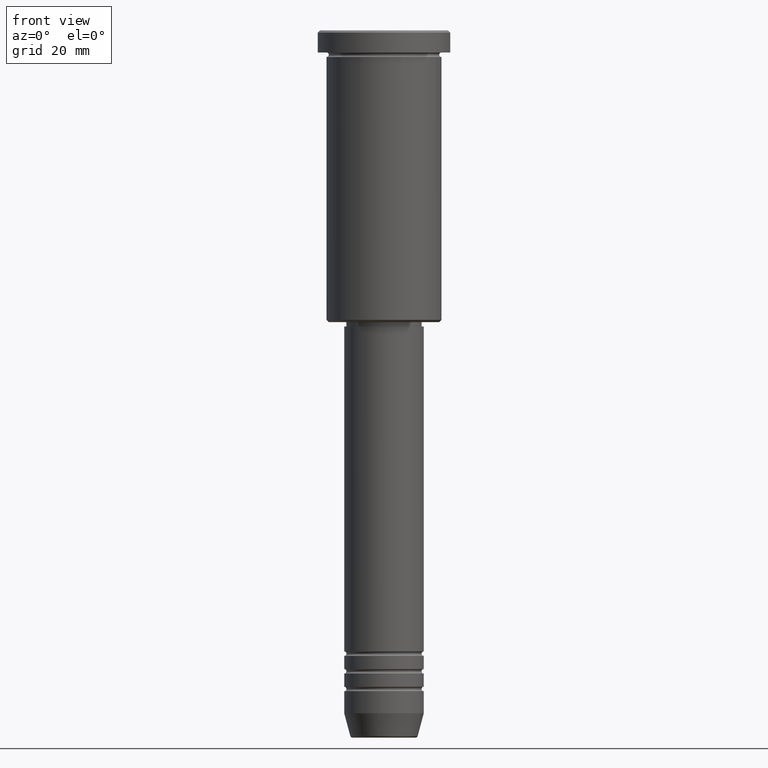
[diagram: clean part render]
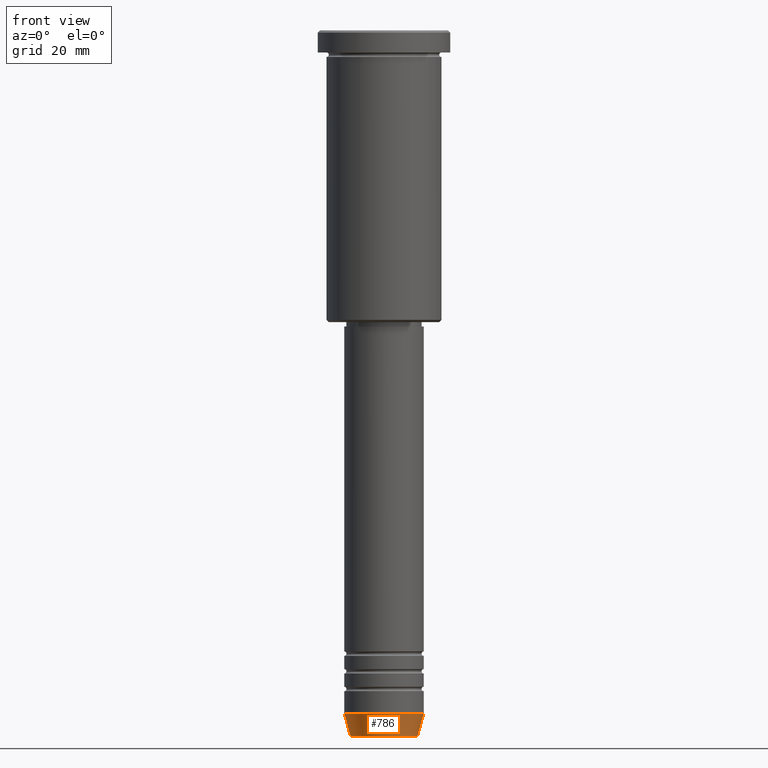
[diagram: same view with one face highlighted and labeled with its STEP entity id]
A machine part, front view. The second image highlights one B-rep face of the part: STEP entity #786.
In plain terms, the highlighted conical surface has half-angle 15 deg.
Its self-contained STEP definition (entity closure, byte-faithful):
#11 = VERTEX_POINT ( 'NONE', #1142 ) ;
#43 = CARTESIAN_POINT ( 'NONE',  ( -7.625578860783873481, 1.018023096791543504E-15, -159.6294095225512422 ) ) ;
#103 = ORIENTED_EDGE ( 'NONE', *, *, #1169, .T. ) ;
#106 = VERTEX_POINT ( 'NONE', #1150 ) ;
#176 = CARTESIAN_POINT ( 'NONE',  ( 9.000000000000001776, 0.000000000000000000, -154.5000000000000000 ) ) ;
#209 = CARTESIAN_POINT ( 'NONE',  ( 0.000000000000000000, 0.000000000000000000, -159.6294095225512422 ) ) ;
#298 = ORIENTED_EDGE ( 'NONE', *, *, #472, .F. ) ;
#335 = EDGE_LOOP ( 'NONE', ( #298, #103, #423, #1099 ) ) ;
#375 = DIRECTION ( 'NONE',  ( 0.2588190451025226824, 0.000000000000000000, 0.9659258262890676461 ) ) ;
#402 = VERTEX_POINT ( 'NONE', #43 ) ;
#423 = ORIENTED_EDGE ( 'NONE', *, *, #1024, .T. ) ;
#472 = EDGE_CURVE ( 'NONE', #402, #11, #986, .T. ) ;
#492 = DIRECTION ( 'NONE',  ( 1.000000000000000000, 0.000000000000000000, 0.000000000000000000 ) ) ;
#494 = DIRECTION ( 'NONE',  ( -0.000000000000000000, -0.000000000000000000, 1.000000000000000000 ) ) ;
#507 = CIRCLE ( 'NONE', #824, 9.000000000000001776 ) ;
#510 = AXIS2_PLACEMENT_3D ( 'NONE', #209, #1043, #492 ) ;
#576 = VERTEX_POINT ( 'NONE', #1072 ) ;
#585 = FACE_OUTER_BOUND ( 'NONE', #335, .T. ) ;
#608 = EDGE_CURVE ( 'NONE', #11, #106, #507, .T. ) ;
#687 = CONICAL_SURFACE ( 'NONE', #927, 9.000000000000001776, 0.2617993877991514062 ) ;
#786 = ADVANCED_FACE ( 'NONE', ( #585 ), #687, .T. ) ;
#788 = CARTESIAN_POINT ( 'NONE',  ( 0.000000000000000000, 0.000000000000000000, -154.5000000000000000 ) ) ;
#802 = LINE ( 'NONE', #176, #1033 ) ;
#824 = AXIS2_PLACEMENT_3D ( 'NONE', #910, #1013, #1087 ) ;
#893 = CARTESIAN_POINT ( 'NONE',  ( -9.000000000000001776, 1.102182119232617911E-15, -154.5000000000000000 ) ) ;
#910 = CARTESIAN_POINT ( 'NONE',  ( 0.000000000000000000, 0.000000000000000000, -154.5000000000000000 ) ) ;
#927 = AXIS2_PLACEMENT_3D ( 'NONE', #788, #494, #1132 ) ;
#975 = DIRECTION ( 'NONE',  ( -0.2588190451025226824, 3.169619151431787744E-17, 0.9659258262890676461 ) ) ;
#986 = LINE ( 'NONE', #893, #1012 ) ;
#1012 = VECTOR ( 'NONE', #975, 1000.000000000000114 ) ;
#1013 = DIRECTION ( 'NONE',  ( -0.000000000000000000, -0.000000000000000000, 1.000000000000000000 ) ) ;
#1024 = EDGE_CURVE ( 'NONE', #576, #106, #802, .T. ) ;
#1033 = VECTOR ( 'NONE', #375, 1000.000000000000114 ) ;
#1043 = DIRECTION ( 'NONE',  ( -0.000000000000000000, -0.000000000000000000, 1.000000000000000000 ) ) ;
#1072 = CARTESIAN_POINT ( 'NONE',  ( 7.625578860783872592, 0.000000000000000000, -159.6294095225512422 ) ) ;
#1087 = DIRECTION ( 'NONE',  ( 1.000000000000000000, 0.000000000000000000, 0.000000000000000000 ) ) ;
#1099 = ORIENTED_EDGE ( 'NONE', *, *, #608, .F. ) ;
#1106 = CIRCLE ( 'NONE', #510, 7.625578860783872592 ) ;
#1132 = DIRECTION ( 'NONE',  ( 1.000000000000000000, 0.000000000000000000, 0.000000000000000000 ) ) ;
#1142 = CARTESIAN_POINT ( 'NONE',  ( -9.000000000000001776, 1.102182119232617911E-15, -154.5000000000000000 ) ) ;
#1150 = CARTESIAN_POINT ( 'NONE',  ( 9.000000000000001776, 0.000000000000000000, -154.5000000000000000 ) ) ;
#1169 = EDGE_CURVE ( 'NONE', #402, #576, #1106, .T. ) ;